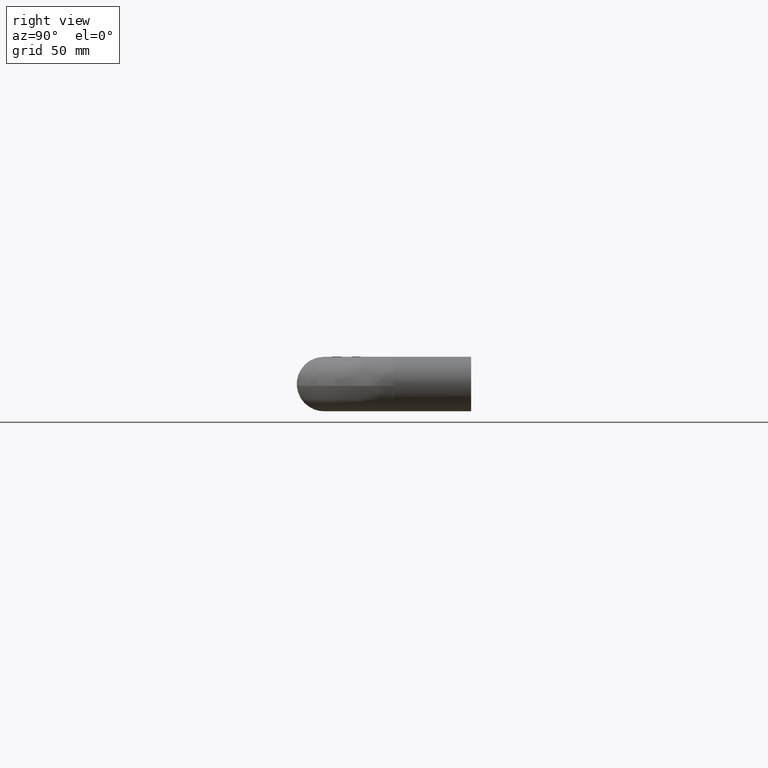
[diagram: clean part render]
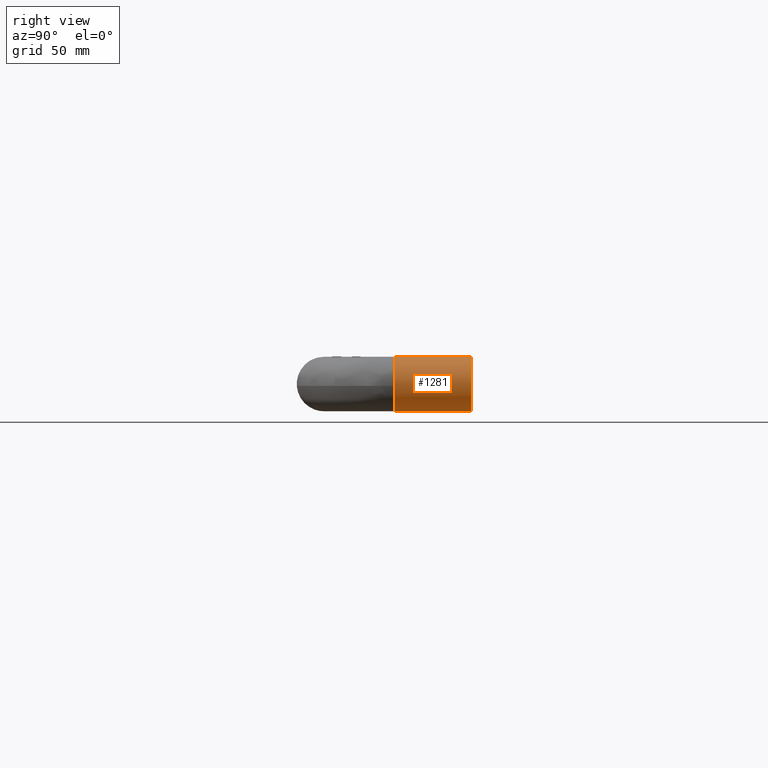
[diagram: same view with one face highlighted and labeled with its STEP entity id]
A machine part, right view. The second image highlights one B-rep face of the part: STEP entity #1281.
In plain terms, the highlighted face is a freeform B-spline surface patch.
Its self-contained STEP definition (entity closure, byte-faithful):
#1136=CARTESIAN_POINT('',(295.604775320105260,-35.875067066633811,11.701794734708219));
#1137=CARTESIAN_POINT('',(297.362631853557330,-35.875067066633818,12.362050242064381));
#1138=CARTESIAN_POINT('',(299.236893255814320,-35.875067066633818,12.476684980273340));
#1139=CARTESIAN_POINT('',(311.713578236087640,-35.875067066633818,13.239791724459048));
#1140=CARTESIAN_POINT('',(312.476684980273320,-35.875067066633818,0.763106744185712));
#1141=CARTESIAN_POINT('',(313.239791724459050,-35.875067066633818,-11.713578236087622));
#1142=CARTESIAN_POINT('',(300.763106744185680,-35.875067066633818,-12.476684980273340));
#1143=CARTESIAN_POINT('',(288.286421763912410,-35.875067066633818,-13.239791724459048));
#1144=CARTESIAN_POINT('',(287.523315019726680,-35.875067066633818,-0.763106744185712));
#1145=CARTESIAN_POINT('',(295.604775320105260,0.896876676665848,11.701794734708219));
#1146=CARTESIAN_POINT('',(297.362631853557330,0.896876676665847,12.362050242064381));
#1147=CARTESIAN_POINT('',(299.236893255814320,0.896876676665848,12.476684980273340));
#1148=CARTESIAN_POINT('',(311.713578236087640,0.896876676665847,13.239791724459048));
#1149=CARTESIAN_POINT('',(312.476684980273320,0.896876676665848,0.763106744185712));
#1150=CARTESIAN_POINT('',(313.239791724459050,0.896876676665847,-11.713578236087622));
#1151=CARTESIAN_POINT('',(300.763106744185680,0.896876676665848,-12.476684980273340));
#1152=CARTESIAN_POINT('',(288.286421763912410,0.896876676665847,-13.239791724459048));
#1153=CARTESIAN_POINT('',(287.523315019726680,0.896876676665848,-0.763106744185712));
#1161=(BOUNDED_SURFACE()B_SPLINE_SURFACE(2,1,((#1136,#1145),(#1137,#1146),(#1138,#1147),(#1139,#1148),(#1140,#1149),(#1141,#1150),(#1142,#1151),(#1143,#1152),(#1144,#1153)),.UNSPECIFIED.,.F.,.F.,.U.)B_SPLINE_SURFACE_WITH_KNOTS((3,2,2,2,3),(2,2),(0.0,4.142135623730961,24.852813742385770,45.563491861040568,66.274169979695372),(0.0,36.771943743299673),.UNSPECIFIED.)GEOMETRIC_REPRESENTATION_ITEM()RATIONAL_B_SPLINE_SURFACE(((0.906274169979695,0.906274169979695),(0.941421356237309,0.941421356237309),(1.0,1.0),(0.707106781186548,0.707106781186548),(1.0,1.0),(0.707106781186548,0.707106781186548),(1.0,1.0),(0.707106781186548,0.707106781186548),(1.0,1.0)))REPRESENTATION_ITEM('')SURFACE());
#1162=CARTESIAN_POINT('',(295.604775319952520,-35.000002161323252,11.701794734657240));
#1163=VERTEX_POINT('',#1162);
#1164=CARTESIAN_POINT('',(300.0,-35.0,12.500000000000000));
#1165=VERTEX_POINT('',#1164);
#1166=CARTESIAN_POINT('',(295.604775319952580,-35.000002161323238,11.701794734657248));
#1167=CARTESIAN_POINT('',(297.729907673996760,-35.000000037307615,12.500000000000226));
#1168=CARTESIAN_POINT('',(300.0,-35.0,12.500000000000000));
#1176=(BOUNDED_CURVE()B_SPLINE_CURVE(2,(#1166,#1167,#1168),.UNSPECIFIED.,.F.,.U.)B_SPLINE_CURVE_WITH_KNOTS((3,3),(0.940284170894781,1.0),.UNSPECIFIED.)CURVE()GEOMETRIC_REPRESENTATION_ITEM()RATIONAL_B_SPLINE_CURVE((0.893499554630714,0.930038554397034,1.0))REPRESENTATION_ITEM(''));
#1177=EDGE_CURVE('',#1163,#1165,#1176,.T.);
#1178=ORIENTED_EDGE('',*,*,#1177,.T.);
#1179=CARTESIAN_POINT('',(312.469570924250720,-34.999990571972319,-0.871665626850377));
#1180=VERTEX_POINT('',#1179);
#1181=CARTESIAN_POINT('',(300.0,-35.0,12.500000000000000));
#1182=CARTESIAN_POINT('',(312.499999999999150,-34.999995604008383,12.500000000000064));
#1183=CARTESIAN_POINT('',(312.499999999998120,-34.999990889994542,1.333457E-013));
#1184=CARTESIAN_POINT('',(312.499999999998120,-34.999990725432482,-0.436363939479835));
#1185=CARTESIAN_POINT('',(312.469570924250720,-34.999990571972312,-0.871665626850377));
#1193=(BOUNDED_CURVE()B_SPLINE_CURVE(2,(#1181,#1182,#1183,#1184,#1185),.UNSPECIFIED.,.F.,.U.)B_SPLINE_CURVE_WITH_KNOTS((3,2,3),(0.0,0.250000000000000,0.262166313218778),.UNSPECIFIED.)CURVE()GEOMETRIC_REPRESENTATION_ITEM()RATIONAL_B_SPLINE_CURVE((1.0,0.707106781186547,1.0,0.985746277441037,0.972879876907562))REPRESENTATION_ITEM(''));
#1194=EDGE_CURVE('',#1165,#1180,#1193,.T.);
#1195=ORIENTED_EDGE('',*,*,#1194,.T.);
#1196=CARTESIAN_POINT('',(299.843023649620590,-35.000065430862257,-12.499014297760890));
#1197=VERTEX_POINT('',#1196);
#1198=CARTESIAN_POINT('',(312.469570924250720,-34.999990571972319,-0.871665626850377));
#1199=CARTESIAN_POINT('',(312.007531781933210,-34.999994668659092,-7.481344461547918));
#1200=CARTESIAN_POINT('',(306.468309376820510,-35.000020081406063,-12.582221909119459));
#1201=CARTESIAN_POINT('',(299.843023649620590,-35.000065430862257,-12.499014297760890));
#1202=B_SPLINE_CURVE_WITH_KNOTS('',3,(#1198,#1199,#1200,#1201),.UNSPECIFIED.,.F.,.U.,(4,4),(0.0,19.877424637062280),.UNSPECIFIED.);
#1203=EDGE_CURVE('',#1180,#1197,#1202,.T.);
#1204=ORIENTED_EDGE('',*,*,#1203,.T.);
#1205=CARTESIAN_POINT('',(287.523315019783010,-35.000034917707318,-0.763106744980262));
#1206=VERTEX_POINT('',#1205);
#1207=CARTESIAN_POINT('',(299.843023649620590,-35.000065430862264,-12.499014297760892));
#1208=CARTESIAN_POINT('',(288.232195049864570,-35.000065240030160,-12.353192758955005));
#1209=CARTESIAN_POINT('',(287.523315019782960,-35.000034917707318,-0.763106744980262));
#1217=(BOUNDED_CURVE()B_SPLINE_CURVE(2,(#1207,#1208,#1209),.UNSPECIFIED.,.F.,.U.)B_SPLINE_CURVE_WITH_KNOTS((3,3),(0.502214309014386,0.739332962217103),.UNSPECIFIED.)CURVE()GEOMETRIC_REPRESENTATION_ITEM()RATIONAL_B_SPLINE_CURVE((0.994857506558048,0.721976836175264,0.976072041619910))REPRESENTATION_ITEM(''));
#1218=EDGE_CURVE('',#1197,#1206,#1217,.T.);
#1219=ORIENTED_EDGE('',*,*,#1218,.T.);
#1220=CARTESIAN_POINT('',(287.523315019773010,6.661338E-016,-0.763106744942290));
#1221=VERTEX_POINT('',#1220);
#1222=CARTESIAN_POINT('',(287.523315019783010,-35.000034917707318,-0.763106744980262));
#1223=CARTESIAN_POINT('',(287.523315019773010,6.661338E-016,-0.763106744942290));
#1224=QUASI_UNIFORM_CURVE('',1,(#1222,#1223),.UNSPECIFIED.,.F.,.U.);
#1225=EDGE_CURVE('',#1206,#1221,#1224,.T.);
#1226=ORIENTED_EDGE('',*,*,#1225,.T.);
#1227=CARTESIAN_POINT('',(300.0,-3.034080E-030,-12.500000000000000));
#1228=VERTEX_POINT('',#1227);
#1229=CARTESIAN_POINT('',(300.0,-3.034080E-030,-12.500000000000000));
#1230=CARTESIAN_POINT('',(288.241174165107570,-3.034080E-030,-12.499999999999998));
#1231=CARTESIAN_POINT('',(287.523315019773010,6.661338E-016,-0.763106744942290));
#1239=(BOUNDED_CURVE()B_SPLINE_CURVE(2,(#1229,#1230,#1231),.UNSPECIFIED.,.F.,.U.)B_SPLINE_CURVE_WITH_KNOTS((3,3),(0.500000000000000,0.739332962221042),.UNSPECIFIED.)CURVE()GEOMETRIC_REPRESENTATION_ITEM()RATIONAL_B_SPLINE_CURVE((1.0,0.719603993307683,0.976072041628352))REPRESENTATION_ITEM(''));
#1240=EDGE_CURVE('',#1228,#1221,#1239,.T.);
#1241=ORIENTED_EDGE('',*,*,#1240,.F.);
#1242=CARTESIAN_POINT('',(300.0,-3.034080E-030,12.500000000000000));
#1243=VERTEX_POINT('',#1242);
#1244=CARTESIAN_POINT('',(300.0,-3.034080E-030,12.500000000000000));
#1245=CARTESIAN_POINT('',(312.500000000000000,-3.034080E-030,12.499999999999998));
#1246=CARTESIAN_POINT('',(312.500000000000000,-3.034080E-030,0.0));
#1247=CARTESIAN_POINT('',(312.500000000000000,-3.034080E-030,-12.499999999999998));
#1248=CARTESIAN_POINT('',(300.0,-3.034080E-030,-12.500000000000000));
#1256=(BOUNDED_CURVE()B_SPLINE_CURVE(2,(#1244,#1245,#1246,#1247,#1248),.UNSPECIFIED.,.F.,.U.)B_SPLINE_CURVE_WITH_KNOTS((3,2,3),(0.0,0.250000000000000,0.500000000000000),.UNSPECIFIED.)CURVE()GEOMETRIC_REPRESENTATION_ITEM()RATIONAL_B_SPLINE_CURVE((1.0,0.707106781186547,1.0,0.707106781186547,1.0))REPRESENTATION_ITEM(''));
#1257=EDGE_CURVE('',#1243,#1228,#1256,.T.);
#1258=ORIENTED_EDGE('',*,*,#1257,.F.);
#1259=CARTESIAN_POINT('',(295.604775319954680,5.512685E-016,11.701794734651600));
#1260=VERTEX_POINT('',#1259);
#1261=CARTESIAN_POINT('',(295.604775319954680,5.512685E-016,11.701794734651607));
#1262=CARTESIAN_POINT('',(297.729907673999260,-3.034080E-030,12.500000000000002));
#1263=CARTESIAN_POINT('',(300.0,-3.034080E-030,12.500000000000000));
#1271=(BOUNDED_CURVE()B_SPLINE_CURVE(2,(#1261,#1262,#1263),.UNSPECIFIED.,.F.,.U.)B_SPLINE_CURVE_WITH_KNOTS((3,3),(0.940284170894840,1.0),.UNSPECIFIED.)CURVE()GEOMETRIC_REPRESENTATION_ITEM()RATIONAL_B_SPLINE_CURVE((0.893499554630786,0.930038554397103,1.0))REPRESENTATION_ITEM(''));
#1272=EDGE_CURVE('',#1260,#1243,#1271,.T.);
#1273=ORIENTED_EDGE('',*,*,#1272,.F.);
#1274=CARTESIAN_POINT('',(295.604775319952520,-35.000002161323252,11.701794734657240));
#1275=CARTESIAN_POINT('',(295.604775319954680,5.512685E-016,11.701794734651600));
#1276=QUASI_UNIFORM_CURVE('',1,(#1274,#1275),.UNSPECIFIED.,.F.,.U.);
#1277=EDGE_CURVE('',#1163,#1260,#1276,.T.);
#1278=ORIENTED_EDGE('',*,*,#1277,.F.);
#1279=EDGE_LOOP('',(#1178,#1195,#1204,#1219,#1226,#1241,#1258,#1273,#1278));
#1280=FACE_OUTER_BOUND('',#1279,.T.);
#1281=ADVANCED_FACE('',(#1280),#1161,.T.);